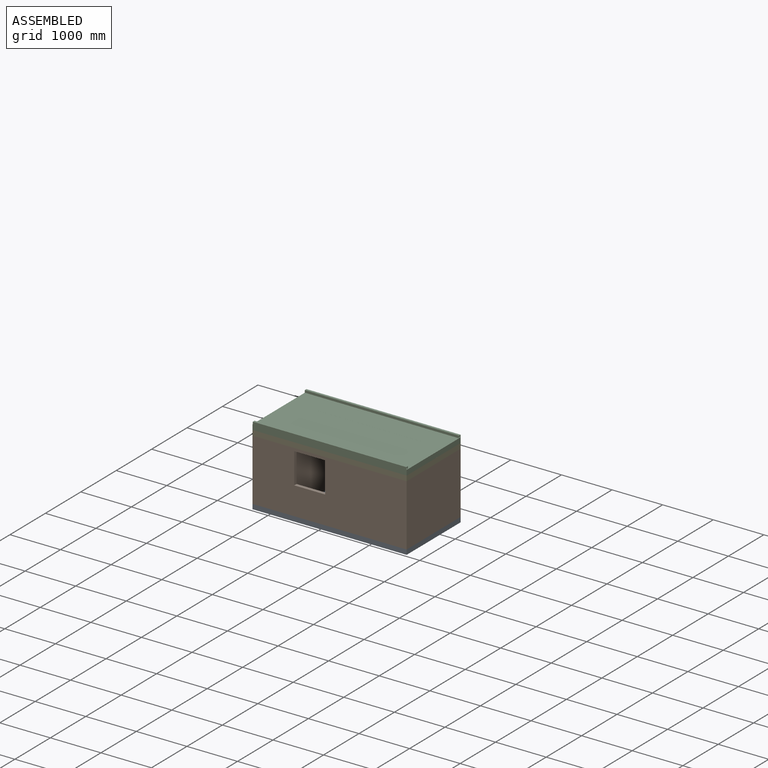
[diagram: assembled view]
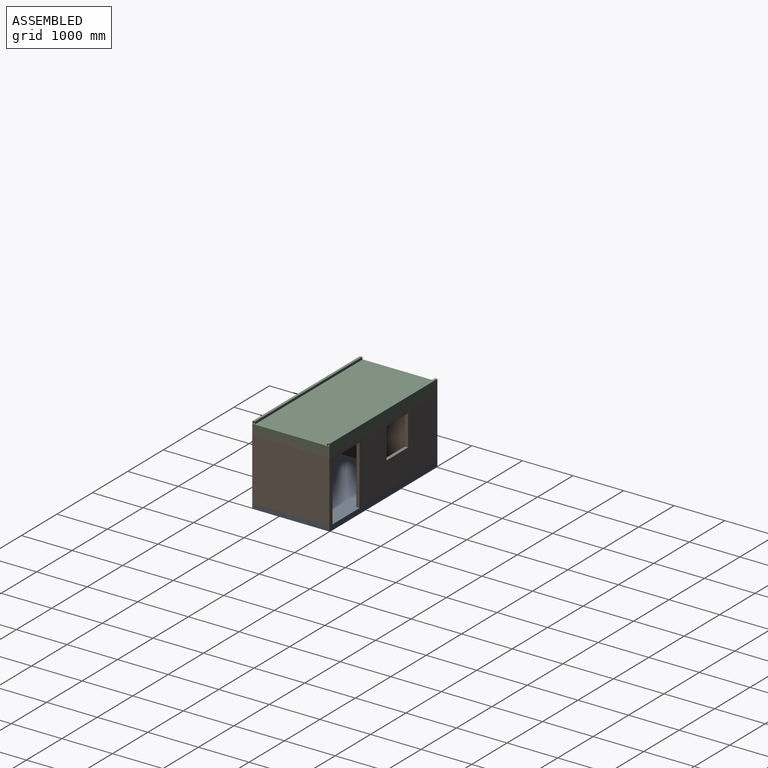
[diagram: assembled view, second angle]
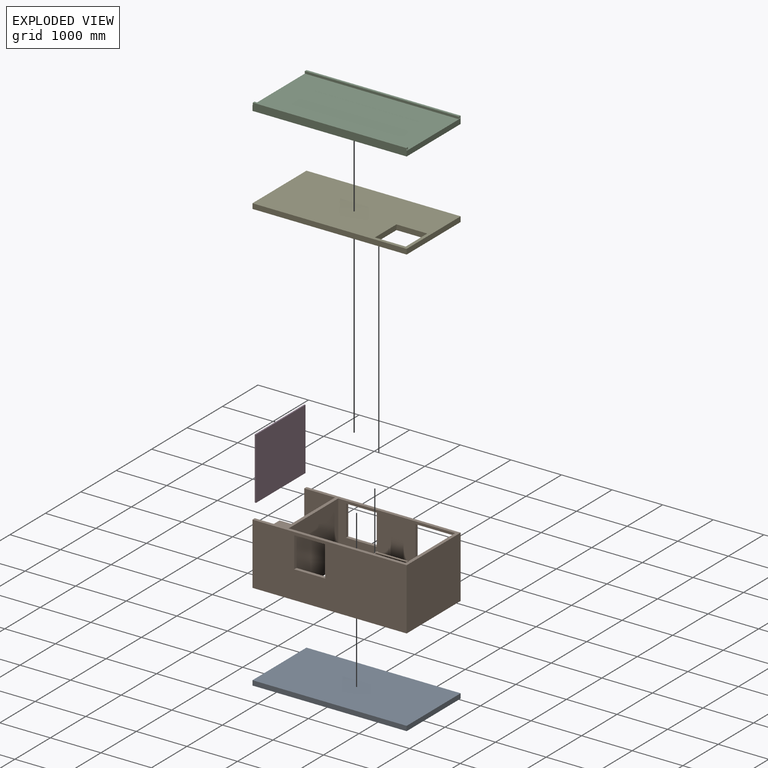
[diagram: exploded view]
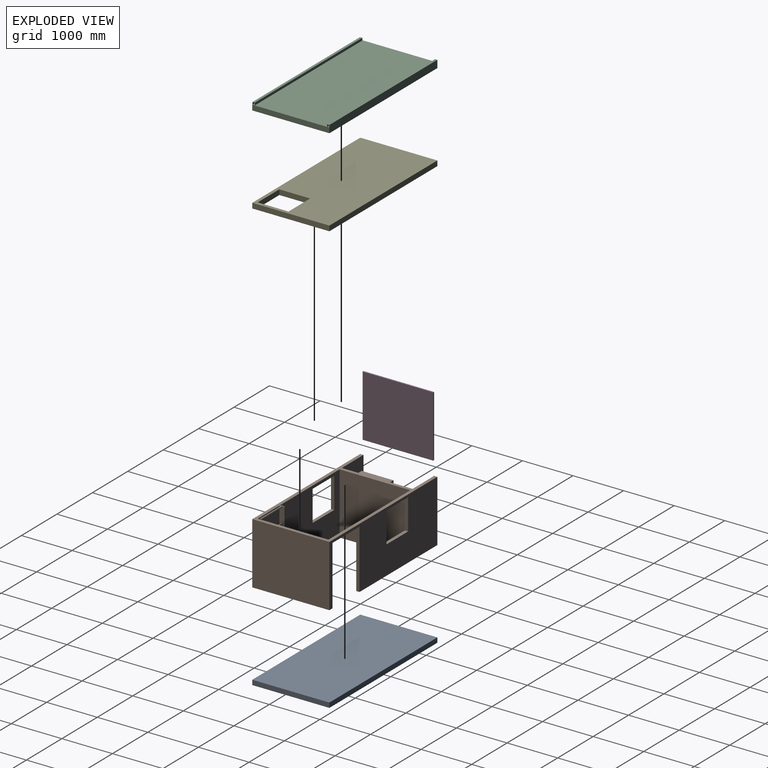
[diagram: exploded view, second angle]
ASSEMBLY  parts=5 mates=4
PART A: 6 faces, bbox 3048x1524x95.3 mm
  f0: plane 3048x95.25mm, normal (0,-1,0), area 290322mm2, adj f1,f3,f4,f5
  f1: plane 1524x95.25mm, normal (1,0,0), area 145161mm2, adj f0,f2,f4,f5
  f2: plane 3048x95.25mm, normal (0,1,0), area 290322mm2, adj f1,f3,f4,f5
  f3: plane 1524x95.25mm, normal (-1,0,0), area 145161mm2, adj f0,f2,f4,f5
  f4: plane 3048x1524mm, normal (0,0,1), area 4645152mm2, adj f0,f1,f2,f3
  f5: plane 3048x1524mm, normal (0,0,-1), area 4645152mm2, adj f0,f1,f2,f3
PART B: 45 faces, bbox 3048x1524x1235.1 mm
  f0: plane 934.79x609.6mm, normal (-1,0,0), area 569846.8mm2, adj f2,f17,f39,f40
  f1: plane 768.35x306.14mm, normal (-1,0,0), area 235221.1mm2, adj f12,f17,f37,f38
  f2: plane 1219.2x609.6mm, normal (0,1,0), area 732579.2mm2, adj f0,f13,f14,f16,f17,f40,f41,f44
  f3: plane 34.93x19.05mm, normal (0,0,1), area 665.3mm2, adj f29,f30,f31,f32
  f4: plane 1219.2x609.6mm, normal (0,1,0), area 743224.3mm2, adj f15,f16,f17,f29
  f5: plane 1682.75x1219.2mm, normal (0,1,0), area 1679996.6mm2, adj f6,f16,f17,f25,f26,f27,f28,f30
  f6: plane 1397x1219.2mm, normal (1,0,0), area 1703222.4mm2, adj f5,f7,f16,f17
  f7: plane 2311.4x1219.2mm, normal (0,-1,0), area 1556125.9mm2, adj f6,f15,f16,f17,f18,f19,f20,f21
  f8: plane 3048x1219.2mm, normal (0,-1,0), area 3344509.4mm2, adj f9,f14,f16,f17,f25,f26,f27,f28
  f9: plane 1524x1219.2mm, normal (1,0,0), area 1858060.8mm2, adj f8,f10,f16,f17
  f10: plane 3048x1219.2mm, normal (0,1,0), area 2454188.6mm2, adj f9,f11,f16,f17,f18,f19,f20,f21
  f11: plane 1219.2x63.5mm, normal (-1,0,0), area 77419.2mm2, adj f10,f12,f16,f17
  f12: plane 1219.2x609.6mm, normal (0,-1,0), area 732579.2mm2, adj f1,f11,f13,f16,f17,f37,f43,f44
  f13: plane 1397x894.01mm, normal (-1,0,0), area 853734mm2, adj f2,f12,f16,f41,f42,f43
  f14: plane 1219.2x63.5mm, normal (-1,0,0), area 77419.2mm2, adj f2,f8,f16,f17
  f15: plane 1397x1219.2mm, normal (-1,0,0), area 1700282mm2, adj f4,f7,f16,f17,f32,f34,f35,f36
  f16: plane 3048x1524mm, normal (0,0,1), area 564978.7mm2, adj f2,f4,f5,f6,f7,f8,f9,f10
  f17: plane 3048x1524mm, normal (0,0,-1), area 528708.6mm2, adj f0,f1,f2,f4,f5,f6,f7,f8
  f18: plane 1168.4x63.5mm, normal (-1,0,0), area 74193.4mm2, adj f7,f10,f17,f20
  f19: plane 1168.4x63.5mm, normal (1,0,0), area 74193.4mm2, adj f7,f10,f17,f20
  f20: plane 762x63.5mm, normal (0,0,-1), area 48387mm2, adj f7,f10,f18,f19
  f21: plane 609.6x63.5mm, normal (0,0,-1), area 38709.6mm2, adj f7,f10,f22,f24
  f22: plane 609.6x63.5mm, normal (-1,0,0), area 38709.6mm2, adj f7,f10,f21,f23
  f23: plane 609.6x63.5mm, normal (0,0,1), area 38709.6mm2, adj f7,f10,f22,f24
  f24: plane 609.6x63.5mm, normal (1,0,0), area 38709.6mm2, adj f7,f10,f21,f23
  f25: plane 609.6x63.5mm, normal (1,0,0), area 38709.6mm2, adj f5,f8,f26,f28
  f26: plane 609.6x63.5mm, normal (0,0,1), area 38709.6mm2, adj f5,f8,f25,f27
  f27: plane 609.6x63.5mm, normal (-1,0,0), area 38709.6mm2, adj f5,f8,f26,f28
  f28: plane 609.6x63.5mm, normal (0,0,-1), area 38709.6mm2, adj f5,f8,f25,f27
  f29: plane 1219.2x101.6mm, normal (1,0,0), area 120930.4mm2, adj f3,f4,f16,f17,f31,f32,f34,f35
  f30: plane 1235.08x101.6mm, normal (-1,0,0), area 124266.6mm2, adj f3,f5,f16,f17,f31,f32
  f31: plane 1219.2x19.05mm, normal (0,1,0), area 23225.8mm2, adj f3,f17,f29,f30
  f32: cylinder r=15.88mm len=635mm, axis (-1,0,0), area 62071.7mm2, adj f3,f15,f16,f29,f30,f33
  f33: plane 31.75x15.88mm, normal (1,0,0), area 395.9mm2, adj f16,f32
  f34: cylinder r=15.88mm len=609.6mm, axis (-1,0,0), area 60804.9mm2, adj f15,f29
  f35: cylinder r=15.88mm len=609.6mm, axis (-1,0,0), area 60804.9mm2, adj f15,f29
  f36: cylinder r=17.49mm len=609.6mm, axis (-1,0,0), area 66991.1mm2, adj f15,f29
  f37: plane 768.35x558.8mm, normal (0,0,-1), area 429354mm2, adj f1,f12,f38,f44
  f38: plane 558.8x306.14mm, normal (0,1,0), area 171069.9mm2, adj f1,f17,f37,f44
  f39: plane 934.79x558.8mm, normal (0,-1,0), area 522359.5mm2, adj f0,f17,f40,f44
  f40: plane 609.6x558.8mm, normal (0,0,-1), area 340644.5mm2, adj f0,f2,f39,f44
  f41: plane 628.65x558.8mm, normal (0,0,1), area 351289.6mm2, adj f2,f13,f42,f44
  f42: plane 628.65x558.8mm, normal (0,1,0), area 351289.6mm2, adj f13,f41,f43,f44
  f43: plane 768.35x558.8mm, normal (0,0,1), area 429354mm2, adj f12,f13,f42,f44
  f44: plane 1397x953.84mm, normal (-1,0,0), area 44420.6mm2, adj f2,f12,f17,f37,f38,f39,f40,f41
PART C: 25 faces, bbox 3048x1524x149.2 mm
  f0: plane 1524x147.96mm, normal (-1,0,0), area 155386.8mm2, adj f2,f3,f12,f13,f19,f20,f21,f22
  f1: plane 1524x147.96mm, normal (1,0,0), area 155386.8mm2, adj f2,f3,f12,f13,f19,f20,f21,f22
  f2: plane 3048x1477.65mm, normal (0,0,1), area 4359305.8mm2, adj f0,f1,f3,f15,f17,f18,f19
  f3: plane 3048x149.23mm, normal (0,-1,0), area 454233mm2, adj f0,f1,f2,f13,f16,f17,f18
  f4: plane 3035.3x41.28mm, normal (0,0,-1), area 125282mm2, adj f5,f7,f17,f18
  f5: plane 3035.3x41.28mm, normal (0,-1,0), area 125282mm2, adj f4,f6,f17,f18
  f6: plane 3035.3x41.28mm, normal (0,0,1), area 125282mm2, adj f5,f7,f17,f18
  f7: plane 3035.3x41.28mm, normal (0,1,0), area 125282mm2, adj f4,f6,f17,f18
  f8: plane 2971.8x76.2mm, normal (0,1,0), area 226451.2mm2, adj f9,f11,f13,f14
  f9: plane 1447.8x76.2mm, normal (1,0,0), area 110322.4mm2, adj f8,f10,f13,f14
  f10: plane 2971.8x76.2mm, normal (0,-1,0), area 226451.2mm2, adj f9,f11,f13,f14
  f11: plane 1447.8x76.2mm, normal (-1,0,0), area 110322.4mm2, adj f8,f10,f13,f14
  f12: plane 3048x147.96mm, normal (0,1,0), area 450966.8mm2, adj f0,f1,f13,f20
  f13: plane 3048x1524mm, normal (0,0,-1), area 342580mm2, adj f0,f1,f3,f8,f9,f10,f11,f12
  f14: plane 2971.8x1447.8mm, normal (0,0,-1), area 4302572mm2, adj f8,f9,f10,f11
  f15: plane 3035.3x47.63mm, normal (0,1,0), area 144556.2mm2, adj f2,f16,f17,f18
  f16: plane 3035.3x47.63mm, normal (0,0,1), area 144556.2mm2, adj f3,f15,f17,f18
  f17: plane 47.63x47.63mm, normal (-1,0,0), area 564.5mm2, adj f2,f3,f4,f5,f6,f7,f15,f16
  f18: plane 47.63x47.63mm, normal (1,0,0), area 564.5mm2, adj f2,f3,f4,f5,f6,f7,f15,f16
  f19: plane 3048x46.36mm, normal (0,-1,0), area 141290mm2, adj f0,f1,f2,f20
  f20: plane 3048x46.36mm, normal (0,0,1), area 141290mm2, adj f0,f1,f12,f19
  f21: plane 3048x40.01mm, normal (0,1,0), area 121935.2mm2, adj f0,f1,f22,f24
  f22: plane 3048x40.01mm, normal (0,0,-1), area 121935.2mm2, adj f0,f1,f21,f23
  f23: plane 3048x40.01mm, normal (0,-1,0), area 121935.2mm2, adj f0,f1,f22,f24
  f24: plane 3048x40.01mm, normal (0,0,1), area 121935.2mm2, adj f0,f1,f21,f23
PART D: 6 faces, bbox 1397x25.4x1219.2 mm
  f0: plane 1219.2x25.4mm, normal (1,0,0), area 30967.7mm2, adj f1,f3,f4,f5
  f1: plane 1397x25.4mm, normal (0,0,1), area 35483.8mm2, adj f0,f2,f4,f5
  f2: plane 1219.2x25.4mm, normal (-1,0,0), area 30967.7mm2, adj f1,f3,f4,f5
  f3: plane 1397x25.4mm, normal (0,0,-1), area 35483.8mm2, adj f0,f2,f4,f5
  f4: plane 1397x1219.2mm, normal (0,-1,0), area 1703222.4mm2, adj f0,f1,f2,f3
  f5: plane 1397x1219.2mm, normal (0,1,0), area 1703222.4mm2, adj f0,f1,f2,f3
PART E: 10 faces, bbox 3048x1524x101.6 mm
  f0: plane 3048x1524mm, normal (0,0,1), area 4273539.8mm2, adj f2,f3,f4,f5,f6,f7,f8,f9
  f1: plane 3048x1524mm, normal (0,0,-1), area 4273539.8mm2, adj f2,f3,f4,f5,f6,f7,f8,f9
  f2: plane 3048x101.6mm, normal (0,-1,0), area 309676.8mm2, adj f0,f1,f3,f5
  f3: plane 1524x101.6mm, normal (1,0,0), area 154838.4mm2, adj f0,f1,f2,f4
  f4: plane 3048x101.6mm, normal (0,1,0), area 309676.8mm2, adj f0,f1,f3,f5
  f5: plane 1524x101.6mm, normal (-1,0,0), area 154838.4mm2, adj f0,f1,f2,f4
  f6: plane 609.6x101.6mm, normal (0,1,0), area 61935.4mm2, adj f0,f1,f7,f9
  f7: plane 609.6x101.6mm, normal (-1,0,0), area 61935.4mm2, adj f0,f1,f6,f8
  f8: plane 609.6x101.6mm, normal (0,-1,0), area 61935.4mm2, adj f0,f1,f7,f9
  f9: plane 609.6x101.6mm, normal (1,0,0), area 61935.4mm2, adj f0,f1,f6,f8
PLACE A t=(-350.02,2419.02,-114.76)mm
PLACE B t=(-350.02,2419.02,-19.51)mm
PLACE C t=(-350.02,2419.02,1301.29)mm
PLACE D rot(axis=(0,0,-1),90deg) t=(-3372.62,2482.52,1199.69)mm
PLACE E t=(-350.02,2419.02,1199.69)mm
MATE planar B.f17 <-> A.f4  axis (0,0,1) through (-350.02,2419.02,-19.51)mm
MATE planar D.f2 <-> B.f12  axis (0,1,0) through (-3398.02,3879.52,1199.69)mm
MATE planar C.f13 <-> E.f0  axis (0,0,-1) through (-350.02,2419.02,1301.29)mm
MATE planar E.f1 <-> B.f16  axis (0,0,-1) through (-350.02,2419.02,1199.69)mm
